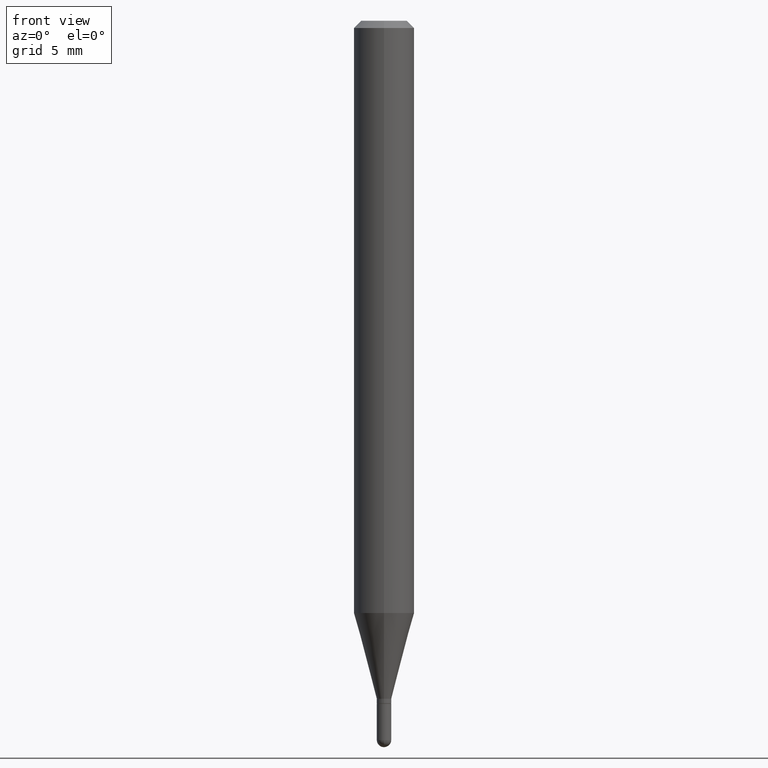
[diagram: clean part render]
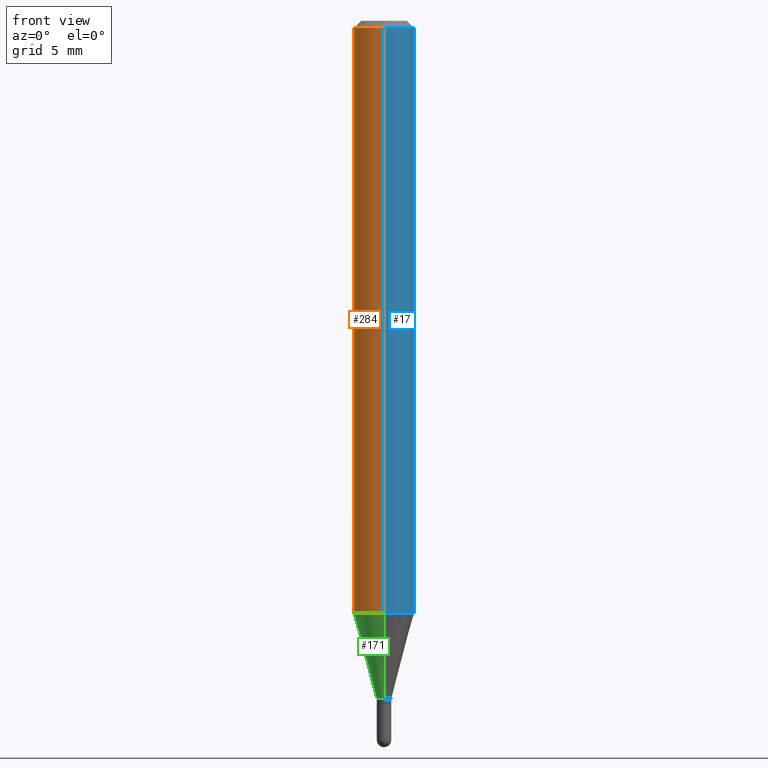
[diagram: same view with three faces highlighted in distinct colors, each labeled with its STEP entity id]
A machine part, front view with three faces highlighted in distinct colors.
Their STEP definitions:

[orange] entity #284 — the highlighted cylindrical surface (edge-blend (fillet) strip) has radius 1.5875 mm, axis along (-0, 0, 1).
#1 = EDGE_CURVE ( 'NONE', #212, #137, #240, .T. ) ;
#12 = CARTESIAN_POINT ( 'NONE',  ( -4.364351673553916201E-16, -0.06250000000000000000, 2.182178578193264721E-16 ) ) ;
#14 = DIRECTION ( 'NONE',  ( -2.445465743271904969E-29, 3.491485725109223553E-15, 1.000000000000000000 ) ) ;
#48 = VERTEX_POINT ( 'NONE', #228 ) ;
#56 = DIRECTION ( 'NONE',  ( -2.445465743271904969E-29, 3.491485725109223553E-15, 1.000000000000000000 ) ) ;
#71 = LINE ( 'NONE', #494, #444 ) ;
#83 = ORIENTED_EDGE ( 'NONE', *, *, #124, .F. ) ;
#84 = CIRCLE ( 'NONE', #250, 0.06250000000000000000 ) ;
#86 = EDGE_LOOP ( 'NONE', ( #83, #103, #403, #235 ) ) ;
#103 = ORIENTED_EDGE ( 'NONE', *, *, #1, .T. ) ;
#110 = AXIS2_PLACEMENT_3D ( 'NONE', #506, #192, #429 ) ;
#124 = EDGE_CURVE ( 'NONE', #212, #297, #71, .T. ) ;
#133 = VECTOR ( 'NONE', #14, 39.37007874015748143 ) ;
#135 = CARTESIAN_POINT ( 'NONE',  ( 4.440892098500922971E-16, 0.06249999999999571176, -1.222727586640479203 ) ) ;
#137 = VERTEX_POINT ( 'NONE', #491 ) ;
#174 = CARTESIAN_POINT ( 'NONE',  ( 2.990138426482821198E-29, -4.269135914452482936E-15, -1.222727586640478759 ) ) ;
#192 = DIRECTION ( 'NONE',  ( -2.445465743271904969E-29, 3.491485725109223553E-15, 1.000000000000000000 ) ) ;
#212 = VERTEX_POINT ( 'NONE', #135 ) ;
#228 = CARTESIAN_POINT ( 'NONE',  ( -4.364351673553912750E-16, -0.06250000000000005551, -0.01499999999999979128 ) ) ;
#235 = ORIENTED_EDGE ( 'NONE', *, *, #508, .F. ) ;
#240 = CIRCLE ( 'NONE', #407, 0.06250000000000000000 ) ;
#250 = AXIS2_PLACEMENT_3D ( 'NONE', #402, #56, #358 ) ;
#263 = DIRECTION ( 'NONE',  ( -2.445465743271904969E-29, 3.491485725109223553E-15, 1.000000000000000000 ) ) ;
#284 = ADVANCED_FACE ( 'NONE', ( #385 ), #315, .T. ) ;
#297 = VERTEX_POINT ( 'NONE', #387 ) ;
#311 = DIRECTION ( 'NONE',  ( -2.445465743271904969E-29, 3.491485725109223553E-15, 1.000000000000000000 ) ) ;
#315 = CYLINDRICAL_SURFACE ( 'NONE', #110, 0.06250000000000000000 ) ;
#358 = DIRECTION ( 'NONE',  ( -6.982962677686265922E-15, -1.000000000000000000, 3.483106191921935554E-15 ) ) ;
#385 = FACE_OUTER_BOUND ( 'NONE', #86, .T. ) ;
#387 = CARTESIAN_POINT ( 'NONE',  ( 4.440892098500925929E-16, 0.06249999999999995143, -0.01500000000000022669 ) ) ;
#402 = CARTESIAN_POINT ( 'NONE',  ( 3.668198614907860150E-31, -5.237228587663838510E-17, -0.01500000000000000812 ) ) ;
#403 = ORIENTED_EDGE ( 'NONE', *, *, #449, .T. ) ;
#407 = AXIS2_PLACEMENT_3D ( 'NONE', #174, #311, #423 ) ;
#410 = LINE ( 'NONE', #12, #133 ) ;
#423 = DIRECTION ( 'NONE',  ( -6.982962677686265922E-15, -1.000000000000000000, 4.370956789862821150E-15 ) ) ;
#429 = DIRECTION ( 'NONE',  ( -6.982962677686265922E-15, -1.000000000000000000, 3.491485725109223553E-15 ) ) ;
#444 = VECTOR ( 'NONE', #263, 39.37007874015748143 ) ;
#449 = EDGE_CURVE ( 'NONE', #137, #48, #410, .T. ) ;
#491 = CARTESIAN_POINT ( 'NONE',  ( -4.364351673553618406E-16, -0.06250000000000428824, -1.222727586640478536 ) ) ;
#494 = CARTESIAN_POINT ( 'NONE',  ( 4.440892098500625669E-16, 0.06250000000000000000, -2.182178578193264721E-16 ) ) ;
#506 = CARTESIAN_POINT ( 'NONE',  ( 0.000000000000000000, 0.000000000000000000, 0.000000000000000000 ) ) ;
#508 = EDGE_CURVE ( 'NONE', #297, #48, #84, .T. ) ;

[blue] entity #17 — the highlighted cylindrical surface (edge-blend (fillet) strip) has radius 1.5875 mm, axis along (-0, 0, 1).
#12 = CARTESIAN_POINT ( 'NONE',  ( -4.364351673553916201E-16, -0.06250000000000000000, 2.182178578193264721E-16 ) ) ;
#14 = DIRECTION ( 'NONE',  ( -2.445465743271904969E-29, 3.491485725109223553E-15, 1.000000000000000000 ) ) ;
#17 = ADVANCED_FACE ( 'NONE', ( #302 ), #457, .T. ) ;
#27 = DIRECTION ( 'NONE',  ( -6.982962677686265922E-15, -1.000000000000000000, 3.491485725109223553E-15 ) ) ;
#32 = ORIENTED_EDGE ( 'NONE', *, *, #472, .F. ) ;
#48 = VERTEX_POINT ( 'NONE', #228 ) ;
#71 = LINE ( 'NONE', #494, #444 ) ;
#74 = DIRECTION ( 'NONE',  ( -2.445465743271904969E-29, 3.491485725109223553E-15, 1.000000000000000000 ) ) ;
#93 = DIRECTION ( 'NONE',  ( -6.982962677686265922E-15, -1.000000000000000000, 3.483106191921935554E-15 ) ) ;
#124 = EDGE_CURVE ( 'NONE', #212, #297, #71, .T. ) ;
#133 = VECTOR ( 'NONE', #14, 39.37007874015748143 ) ;
#135 = CARTESIAN_POINT ( 'NONE',  ( 4.440892098500922971E-16, 0.06249999999999571176, -1.222727586640479203 ) ) ;
#137 = VERTEX_POINT ( 'NONE', #491 ) ;
#148 = AXIS2_PLACEMENT_3D ( 'NONE', #218, #377, #27 ) ;
#203 = DIRECTION ( 'NONE',  ( -2.445465743271904969E-29, 3.491485725109223553E-15, 1.000000000000000000 ) ) ;
#212 = VERTEX_POINT ( 'NONE', #135 ) ;
#218 = CARTESIAN_POINT ( 'NONE',  ( 0.000000000000000000, 0.000000000000000000, 0.000000000000000000 ) ) ;
#228 = CARTESIAN_POINT ( 'NONE',  ( -4.364351673553912750E-16, -0.06250000000000005551, -0.01499999999999979128 ) ) ;
#263 = DIRECTION ( 'NONE',  ( -2.445465743271904969E-29, 3.491485725109223553E-15, 1.000000000000000000 ) ) ;
#292 = EDGE_CURVE ( 'NONE', #137, #212, #388, .T. ) ;
#297 = VERTEX_POINT ( 'NONE', #387 ) ;
#302 = FACE_OUTER_BOUND ( 'NONE', #305, .T. ) ;
#305 = EDGE_LOOP ( 'NONE', ( #475, #452, #32, #481 ) ) ;
#309 = DIRECTION ( 'NONE',  ( -6.982962677686265922E-15, -1.000000000000000000, 4.370956789862821150E-15 ) ) ;
#340 = CIRCLE ( 'NONE', #477, 0.06250000000000000000 ) ;
#377 = DIRECTION ( 'NONE',  ( -2.445465743271904969E-29, 3.491485725109223553E-15, 1.000000000000000000 ) ) ;
#378 = AXIS2_PLACEMENT_3D ( 'NONE', #470, #74, #309 ) ;
#387 = CARTESIAN_POINT ( 'NONE',  ( 4.440892098500925929E-16, 0.06249999999999995143, -0.01500000000000022669 ) ) ;
#388 = CIRCLE ( 'NONE', #378, 0.06250000000000000000 ) ;
#405 = CARTESIAN_POINT ( 'NONE',  ( 3.668198614907860150E-31, -5.237228587663838510E-17, -0.01500000000000000812 ) ) ;
#410 = LINE ( 'NONE', #12, #133 ) ;
#444 = VECTOR ( 'NONE', #263, 39.37007874015748143 ) ;
#449 = EDGE_CURVE ( 'NONE', #137, #48, #410, .T. ) ;
#452 = ORIENTED_EDGE ( 'NONE', *, *, #124, .T. ) ;
#457 = CYLINDRICAL_SURFACE ( 'NONE', #148, 0.06250000000000000000 ) ;
#470 = CARTESIAN_POINT ( 'NONE',  ( 2.990138426482821198E-29, -4.269135914452482936E-15, -1.222727586640478759 ) ) ;
#472 = EDGE_CURVE ( 'NONE', #48, #297, #340, .T. ) ;
#475 = ORIENTED_EDGE ( 'NONE', *, *, #292, .T. ) ;
#477 = AXIS2_PLACEMENT_3D ( 'NONE', #405, #203, #93 ) ;
#481 = ORIENTED_EDGE ( 'NONE', *, *, #449, .F. ) ;
#491 = CARTESIAN_POINT ( 'NONE',  ( -4.364351673553618406E-16, -0.06250000000000428824, -1.222727586640478536 ) ) ;
#494 = CARTESIAN_POINT ( 'NONE',  ( 4.440892098500625669E-16, 0.06250000000000000000, -2.182178578193264721E-16 ) ) ;

[green] entity #171 — the highlighted conical surface has half-angle 15 deg.
#1 = EDGE_CURVE ( 'NONE', #212, #137, #240, .T. ) ;
#8 = EDGE_LOOP ( 'NONE', ( #338, #24, #200, #406 ) ) ;
#16 = EDGE_CURVE ( 'NONE', #374, #212, #372, .T. ) ;
#21 = DIRECTION ( 'NONE',  ( 1.839019923739601499E-15, 0.2588190451025251249, 0.9659258262890670910 ) ) ;
#24 = ORIENTED_EDGE ( 'NONE', *, *, #198, .T. ) ;
#33 = CARTESIAN_POINT ( 'NONE',  ( 3.423652040580666788E-29, -4.888080015152912343E-15, -1.400000000000000133 ) ) ;
#40 = CARTESIAN_POINT ( 'NONE',  ( -1.047444401652592020E-16, -0.01500000000000480983, -1.400000000000000133 ) ) ;
#42 = EDGE_CURVE ( 'NONE', #88, #137, #430, .T. ) ;
#62 = DIRECTION ( 'NONE',  ( -6.982962677686265133E-15, -1.000000000000000000, 0.000000000000000000 ) ) ;
#75 = DIRECTION ( 'NONE',  ( -1.807323732225331323E-15, -0.2588190451025183525, 0.9659258262890689783 ) ) ;
#88 = VERTEX_POINT ( 'NONE', #254 ) ;
#101 = FACE_OUTER_BOUND ( 'NONE', #8, .T. ) ;
#108 = CARTESIAN_POINT ( 'NONE',  ( 3.423652040580666788E-29, -4.888080015152912343E-15, -1.400000000000000133 ) ) ;
#125 = VECTOR ( 'NONE', #75, 39.37007874015748854 ) ;
#135 = CARTESIAN_POINT ( 'NONE',  ( 4.440892098500922971E-16, 0.06249999999999571176, -1.222727586640479203 ) ) ;
#137 = VERTEX_POINT ( 'NONE', #491 ) ;
#151 = CARTESIAN_POINT ( 'NONE',  ( 2.753353101070707689E-16, 0.01499999999999503640, -1.400000000000000133 ) ) ;
#166 = VECTOR ( 'NONE', #21, 39.37007874015748854 ) ;
#171 = ADVANCED_FACE ( 'NONE', ( #101 ), #310, .T. ) ;
#174 = CARTESIAN_POINT ( 'NONE',  ( 2.990138426482821198E-29, -4.269135914452482936E-15, -1.222727586640478759 ) ) ;
#184 = DIRECTION ( 'NONE',  ( -2.445465743271904969E-29, 3.491485725109223553E-15, 1.000000000000000000 ) ) ;
#195 = CIRCLE ( 'NONE', #496, 0.01499999999999992312 ) ;
#198 = EDGE_CURVE ( 'NONE', #374, #88, #195, .T. ) ;
#200 = ORIENTED_EDGE ( 'NONE', *, *, #42, .T. ) ;
#212 = VERTEX_POINT ( 'NONE', #135 ) ;
#221 = DIRECTION ( 'NONE',  ( -2.445465743271904969E-29, 3.491485725109223553E-15, 1.000000000000000000 ) ) ;
#240 = CIRCLE ( 'NONE', #407, 0.06250000000000000000 ) ;
#254 = CARTESIAN_POINT ( 'NONE',  ( -1.047444401652592020E-16, -0.01500000000000480983, -1.400000000000000133 ) ) ;
#274 = AXIS2_PLACEMENT_3D ( 'NONE', #33, #221, #413 ) ;
#310 = CONICAL_SURFACE ( 'NONE', #274, 0.01499999999999992312, 0.2617993877991504625 ) ;
#311 = DIRECTION ( 'NONE',  ( -2.445465743271904969E-29, 3.491485725109223553E-15, 1.000000000000000000 ) ) ;
#338 = ORIENTED_EDGE ( 'NONE', *, *, #16, .F. ) ;
#372 = LINE ( 'NONE', #495, #166 ) ;
#374 = VERTEX_POINT ( 'NONE', #151 ) ;
#406 = ORIENTED_EDGE ( 'NONE', *, *, #1, .F. ) ;
#407 = AXIS2_PLACEMENT_3D ( 'NONE', #174, #311, #423 ) ;
#413 = DIRECTION ( 'NONE',  ( -6.982962677686265133E-15, -1.000000000000000000, 0.000000000000000000 ) ) ;
#423 = DIRECTION ( 'NONE',  ( -6.982962677686265922E-15, -1.000000000000000000, 4.370956789862821150E-15 ) ) ;
#430 = LINE ( 'NONE', #40, #125 ) ;
#491 = CARTESIAN_POINT ( 'NONE',  ( -4.364351673553618406E-16, -0.06250000000000428824, -1.222727586640478536 ) ) ;
#495 = CARTESIAN_POINT ( 'NONE',  ( 1.065814103640487108E-16, 0.01499999999999503640, -1.400000000000000133 ) ) ;
#496 = AXIS2_PLACEMENT_3D ( 'NONE', #108, #184, #62 ) ;